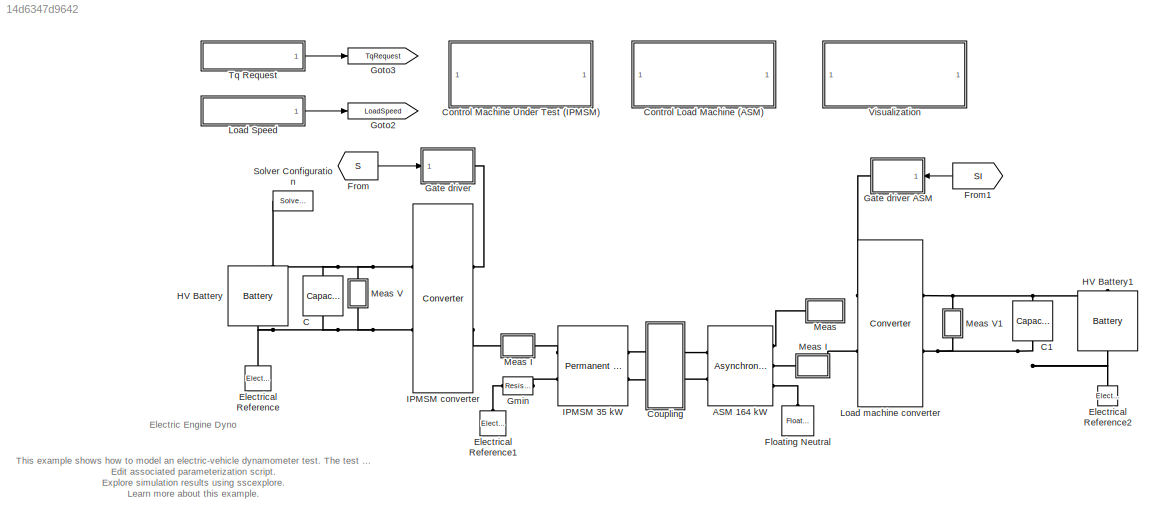
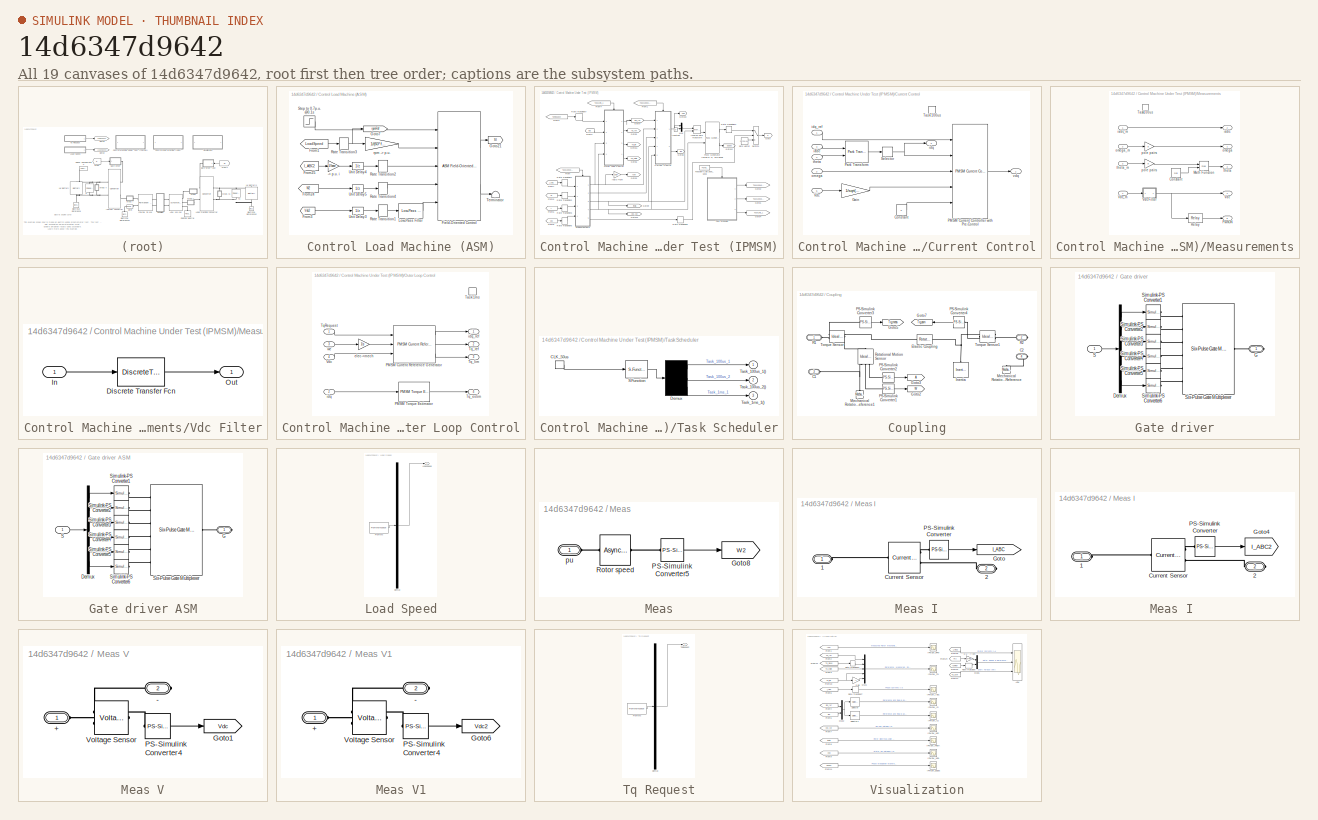
[diagram: thumbnail index - all 19 canvases of the model, root first then tree order]
MODEL slx_14d6347d9642
KIND model
CONFIG AbsTol = auto
CONFIG EnableMultiTasking = on
CONFIG FixedStep = Ts
CONFIG MaxStep = auto
CONFIG MinStep = auto
CONFIG PreLoadFcn = pe_electric_engine_dyno_data;
CONFIG RelTol = 1e-3
CONFIG SampleTimeConstraint = Unconstrained
CONFIG Solver = FixedStepDiscrete
CONFIG SolverName = FixedStepDiscrete
CONFIG StartTime = 0.0
CONFIG StopTime = 0.8
BLOCK [Reference] ASM 164 kW  REF=pe_lib/Machines/Asynchronous
Machine
(Squirrel Cage)/Asynchronous Machine
Squirrel Cage
(fundamental, SI)
  Ports = [0, 0, 0, 0, 0, 2, 3]
  SourceBlock = pe_lib/Machines/Asynchronous\nMachine\n(Squirrel Cage)/Asynchronous Machine\nSquirrel Cage\n(fundamental, SI)
  SourceProductBaseCode = PS
  SourceProductName = Simscape Power Systems
  SourceType = Asynchronous Machine\nSquirrel Cage\n(fundamental, SI)
BLOCK [Reference] C  REF=fl_lib/Electrical/Electrical Elements/Capacitor
  Ports = [0, 0, 0, 0, 0, 1, 1]
  SourceBlock = fl_lib/Electrical/Electrical Elements/Capacitor
  SourceProductName = Foundation Library
  SourceType = Capacitor
BLOCK [Reference] C1  REF=fl_lib/Electrical/Electrical Elements/Capacitor
  Ports = [0, 0, 0, 0, 0, 1, 1]
  SourceBlock = fl_lib/Electrical/Electrical Elements/Capacitor
  SourceProductName = Foundation Library
  SourceType = Capacitor
BLOCK [SubSystem] Control Load Machine (ASM)
  Ports = []
  RequestExecContextInheritance = off
  Variant = off
BLOCK [Gain] Control Load Machine (ASM)/-> p.u. i
  Gain = 1/Ibase
  OutDataTypeStr = Inherit: Inherit via internal rule
  ParamDataTypeStr = Inherit: Inherit via internal rule
  SaturateOnIntegerOverflow = off
BLOCK [Reference] Control Load Machine (ASM)/Field-Oriented Control  REF=peAsmFieldOrientedControl/ASM Field-Oriented Control
  Ports = [5, 2]
  SourceBlock = peAsmFieldOrientedControl/ASM Field-Oriented Control
  SourceType = ASM Field-Oriented Control
BLOCK [From] Control Load Machine (ASM)/From1
  GotoTag = LoadSpeed
  TagVisibility = global
BLOCK [From] Control Load Machine (ASM)/From24
  GotoTag = W2
  TagVisibility = global
BLOCK [From] Control Load Machine (ASM)/From25
  GotoTag = I_ABC2
  TagVisibility = global
BLOCK [From] Control Load Machine (ASM)/From3
  GotoTag = Vdc2
  TagVisibility = global
BLOCK [Goto] Control Load Machine (ASM)/Goto21
  GotoTag = SI
  TagVisibility = global
BLOCK [Goto] Control Load Machine (ASM)/Goto7
  GotoTag = rpmRef
  TagVisibility = global
BLOCK [Reference] Control Load Machine (ASM)/Low-Pass Filter  REF=peGeneralControl/Low-Pass Filter
(Discrete or Continuous)
  Ports = [1, 1]
  SourceBlock = peGeneralControl/Low-Pass Filter\n(Discrete or Continuous)
  SourceType = Low-Pass Filter (Discrete or Continuous)
BLOCK [RateTransition] Control Load Machine (ASM)/Rate Transition1
  OutPortSampleTime = Tsc
BLOCK [RateTransition] Control Load Machine (ASM)/Rate Transition2
  OutPortSampleTime = Tsc
BLOCK [RateTransition] Control Load Machine (ASM)/Rate Transition3
  OutPortSampleTime = Tsc
BLOCK [RateTransition] Control Load Machine (ASM)/Rate Transition4
  OutPortSampleTime = Tsc
BLOCK [Step] Control Load Machine (ASM)/Step to 0.7p.u. @0.1s
  After = 0.7*1/Lm
  SampleTime = Tsc
  Time = 0.1
BLOCK [Terminator] Control Load Machine (ASM)/Terminator
BLOCK [UnitDelay] Control Load Machine (ASM)/Unit Delay3
  InputProcessing = Elements as channels (sample based)
  SampleTime = Ts
BLOCK [UnitDelay] Control Load Machine (ASM)/Unit Delay4
  InputProcessing = Elements as channels (sample based)
  SampleTime = Ts
BLOCK [UnitDelay] Control Load Machine (ASM)/Unit Delay5
  InputProcessing = Elements as channels (sample based)
  SampleTime = Ts
BLOCK [Gain] Control Load Machine (ASM)/rpm -> p.u.
  Gain = 1/(60*fn/p2)
  OutDataTypeStr = Inherit: Inherit via internal rule
  ParamDataTypeStr = Inherit: Inherit via internal rule
  SaturateOnIntegerOverflow = off
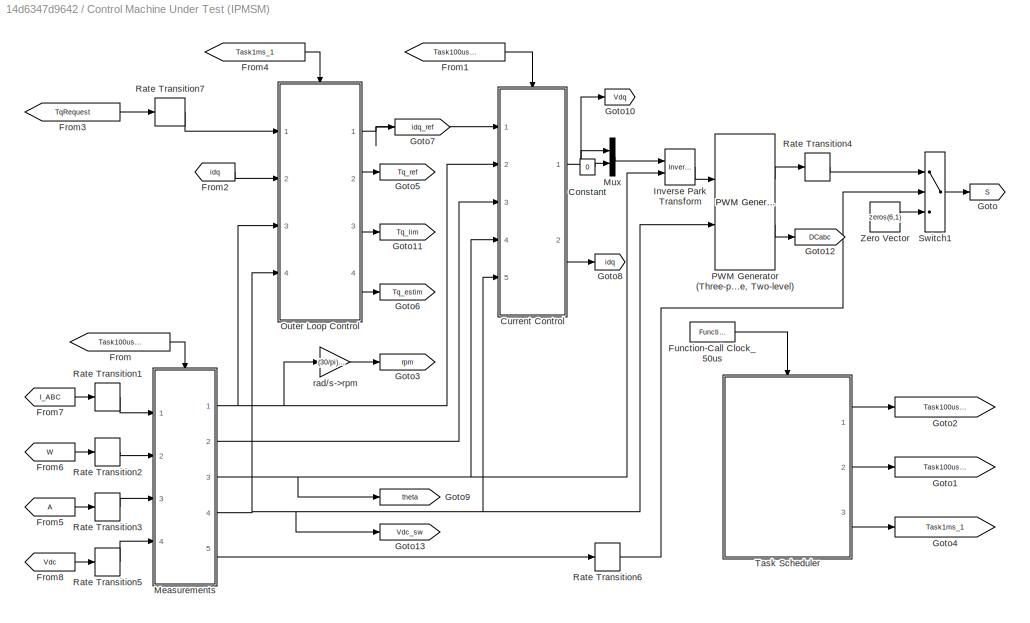
BLOCK [SubSystem] Control Machine Under Test (IPMSM)
  Ports = []
  RequestExecContextInheritance = off
  Variant = off
BLOCK [Constant] Control Machine Under Test (IPMSM)/Constant
  SampleTime = -1
  Value = 0
BLOCK [SubSystem] Control Machine Under Test (IPMSM)/Current Control
  Ports = [5, 2, 0, 1]
  RequestExecContextInheritance = off
  Variant = off
BLOCK [Constant] Control Machine Under Test (IPMSM)/Current Control/Constant
  SampleTime = -1
  Value = 0
BLOCK [Gain] Control Machine Under Test (IPMSM)/Current Control/Gain
  Gain = 1/sqrt(3)
  OutDataTypeStr = Inherit: Inherit via internal rule
  ParamDataTypeStr = Inherit: Inherit via internal rule
  SaturateOnIntegerOverflow = off
BLOCK [Reference] Control Machine Under Test (IPMSM)/Current Control/PMSM Current Controller with Pre-Control  REF=pePmsmCurrentController/PMSM Current Controller
with Pre-Control
  Ports = [5, 1]
  SourceBlock = pePmsmCurrentController/PMSM Current Controller\nwith Pre-Control
  SourceType = PMSM Current Controller with Pre-Control
BLOCK [Reference] Control Machine Under Test (IPMSM)/Current Control/Park Transform  REF=peTransforms/Park Transform
  Ports = [2, 1]
  SourceBlock = peTransforms/Park Transform
  SourceType = Park Transform
BLOCK [Selector] Control Machine Under Test (IPMSM)/Current Control/Selector
  IndexOptions = Index vector (dialog)
  Indices = [1 2]
  InputPortWidth = 3
  OutputSizes = 1
  Ports = [1, 1]
BLOCK [TriggerPort] Control Machine Under Test (IPMSM)/Current Control/Task100us
  PortDimensions = 1
  Ports = []
  StatesWhenEnabling = held
  TriggerType = function-call
  VariantControl = Variant
BLOCK [Inport] Control Machine Under Test (IPMSM)/Current Control/Vdc
  IconDisplay = Port number
  Port = 5
BLOCK [Inport] Control Machine Under Test (IPMSM)/Current Control/iabc
  IconDisplay = Port number
  Port = 3
BLOCK [Outport] Control Machine Under Test (IPMSM)/Current Control/idq
  IconDisplay = Port number
  Port = 2
BLOCK [Inport] Control Machine Under Test (IPMSM)/Current Control/idq_ref
  IconDisplay = Port number
BLOCK [Inport] Control Machine Under Test (IPMSM)/Current Control/omega
  IconDisplay = Port number
  Port = 2
BLOCK [Inport] Control Machine Under Test (IPMSM)/Current Control/theta
  IconDisplay = Port number
  Port = 4
BLOCK [Outport] Control Machine Under Test (IPMSM)/Current Control/vdq
  IconDisplay = Port number
BLOCK [From] Control Machine Under Test (IPMSM)/From
  GotoTag = Task100us_1
BLOCK [From] Control Machine Under Test (IPMSM)/From1
  GotoTag = Task100us_2
BLOCK [From] Control Machine Under Test (IPMSM)/From2
  GotoTag = idq
  TagVisibility = global
BLOCK [From] Control Machine Under Test (IPMSM)/From3
  GotoTag = TqRequest
  TagVisibility = global
BLOCK [From] Control Machine Under Test (IPMSM)/From4
  GotoTag = Task1ms_1
BLOCK [From] Control Machine Under Test (IPMSM)/From5
  TagVisibility = global
BLOCK [From] Control Machine Under Test (IPMSM)/From6
  GotoTag = W
  TagVisibility = global
BLOCK [From] Control Machine Under Test (IPMSM)/From7
  GotoTag = I_ABC
  TagVisibility = global
BLOCK [From] Control Machine Under Test (IPMSM)/From8
  GotoTag = Vdc
  TagVisibility = global
BLOCK [Reference] Control Machine Under Test (IPMSM)/Function-Call Clock_50us  REF=simulink/Ports &
Subsystems/Function-Call
Generator
  Ports = [0, 1]
  SourceBlock = simulink/Ports &\nSubsystems/Function-Call\nGenerator
  SourceProductBaseCode = SL
  SourceProductName = Simulink
  SourceType = Function-Call Generator
BLOCK [Goto] Control Machine Under Test (IPMSM)/Goto
  GotoTag = S
  TagVisibility = global
BLOCK [Goto] Control Machine Under Test (IPMSM)/Goto1
  GotoTag = Task100us_2
BLOCK [Goto] Control Machine Under Test (IPMSM)/Goto10
  GotoTag = Vdq
  TagVisibility = global
BLOCK [Goto] Control Machine Under Test (IPMSM)/Goto11
  GotoTag = Tq_lim
  TagVisibility = global
BLOCK [Goto] Control Machine Under Test (IPMSM)/Goto12
  GotoTag = DCabc
  TagVisibility = global
BLOCK [Goto] Control Machine Under Test (IPMSM)/Goto13
  GotoTag = Vdc_sw
  TagVisibility = global
BLOCK [Goto] Control Machine Under Test (IPMSM)/Goto2
  GotoTag = Task100us_1
BLOCK [Goto] Control Machine Under Test (IPMSM)/Goto3
  GotoTag = rpm
  TagVisibility = global
BLOCK [Goto] Control Machine Under Test (IPMSM)/Goto4
  GotoTag = Task1ms_1
BLOCK [Goto] Control Machine Under Test (IPMSM)/Goto5
  GotoTag = Tq_ref
  TagVisibility = global
BLOCK [Goto] Control Machine Under Test (IPMSM)/Goto6
  GotoTag = Tq_estim
  TagVisibility = global
BLOCK [Goto] Control Machine Under Test (IPMSM)/Goto7
  GotoTag = idq_ref
  TagVisibility = global
BLOCK [Goto] Control Machine Under Test (IPMSM)/Goto8
  GotoTag = idq
  TagVisibility = global
BLOCK [Goto] Control Machine Under Test (IPMSM)/Goto9
  GotoTag = theta
  TagVisibility = global
BLOCK [Reference] Control Machine Under Test (IPMSM)/Inverse Park Transform  REF=peTransforms/Inverse
Park Transform
  Ports = [2, 1]
  SourceBlock = peTransforms/Inverse\nPark Transform
  SourceType = Inverse Park Transform
BLOCK [SubSystem] Control Machine Under Test (IPMSM)/Measurements
  Ports = [4, 5, 0, 1]
  RequestExecContextInheritance = off
  Variant = off
BLOCK [Constant] Control Machine Under Test (IPMSM)/Measurements/Constant
  SampleTime = -1
  Value = 2*pi
BLOCK [Math] Control Machine Under Test (IPMSM)/Measurements/Math Function
  Operator = mod
  Ports = [2, 1]
BLOCK [Outport] Control Machine Under Test (IPMSM)/Measurements/PwmON
  IconDisplay = Port number
  Port = 5
BLOCK [Relay] Control Machine Under Test (IPMSM)/Measurements/Relay
  InputProcessing = Elements as channels (sample based)
  OffSwitchValue = 0.5*VDC_VECT(1)
  OnSwitchValue = VDC_VECT(1)
BLOCK [TriggerPort] Control Machine Under Test (IPMSM)/Measurements/Task100us
  PortDimensions = 1
  Ports = []
  StatesWhenEnabling = held
  TriggerType = function-call
  VariantControl = Variant
BLOCK [Outport] Control Machine Under Test (IPMSM)/Measurements/Vdc
  IconDisplay = Port number
  Port = 4
BLOCK [SubSystem] Control Machine Under Test (IPMSM)/Measurements/Vdc Filter
  Ports = [1, 1]
  RequestExecContextInheritance = off
  Variant = off
BLOCK [DiscreteTransferFcn] Control Machine Under Test (IPMSM)/Measurements/Vdc Filter/Discrete Transfer Fcn
  Denominator = den
  InputPortMap = u0
  Numerator = num
  Ports = [1, 1]
BLOCK [Inport] Control Machine Under Test (IPMSM)/Measurements/Vdc Filter/In
  IconDisplay = Port number
BLOCK [Outport] Control Machine Under Test (IPMSM)/Measurements/Vdc Filter/Out
  IconDisplay = Port number
BLOCK [Inport] Control Machine Under Test (IPMSM)/Measurements/Vdc_m
  IconDisplay = Port number
  Port = 4
BLOCK [Outport] Control Machine Under Test (IPMSM)/Measurements/iabc
  IconDisplay = Port number
  Port = 2
BLOCK [Inport] Control Machine Under Test (IPMSM)/Measurements/iabc_m
  IconDisplay = Port number
BLOCK [Outport] Control Machine Under Test (IPMSM)/Measurements/omega
  IconDisplay = Port number
BLOCK [Inport] Control Machine Under Test (IPMSM)/Measurements/omega_m
  IconDisplay = Port number
  Port = 2
BLOCK [Gain] Control Machine Under Test (IPMSM)/Measurements/pole pairs
  Gain = p
  OutDataTypeStr = Inherit: Inherit via internal rule
  ParamDataTypeStr = Inherit: Inherit via internal rule
  SaturateOnIntegerOverflow = off
BLOCK [Gain] Control Machine Under Test (IPMSM)/Measurements/pole pairs 
  Gain = p
  OutDataTypeStr = Inherit: Inherit via internal rule
  ParamDataTypeStr = Inherit: Inherit via internal rule
  SaturateOnIntegerOverflow = off
BLOCK [Outport] Control Machine Under Test (IPMSM)/Measurements/theta
  IconDisplay = Port number
  Port = 3
BLOCK [Inport] Control Machine Under Test (IPMSM)/Measurements/theta_m
  IconDisplay = Port number
  Port = 3
BLOCK [Mux] Control Machine Under Test (IPMSM)/Mux
  DisplayOption = bar
  Inputs = 2
  Ports = [2, 1]
BLOCK [SubSystem] Control Machine Under Test (IPMSM)/Outer Loop Control
  Ports = [4, 4, 0, 1]
  RequestExecContextInheritance = off
  Variant = off
BLOCK [Reference] Control Machine Under Test (IPMSM)/Outer Loop Control/PMSM Current Reference Generator  REF=pePmsmCurrentReferenceGen/PMSM Current Reference
Generator
  Ports = [3, 3]
  SourceBlock = pePmsmCurrentReferenceGen/PMSM Current Reference\nGenerator
  SourceType = PMSM Current Reference Generator
BLOCK [Reference] Control Machine Under Test (IPMSM)/Outer Loop Control/PMSM Torque Estimator  REF=pePmsmTorqueEstimator/PMSM Torque
Estimator
  Ports = [1, 1]
  SourceBlock = pePmsmTorqueEstimator/PMSM Torque\nEstimator
  SourceType = PMSM Torque Estimator
BLOCK [TriggerPort] Control Machine Under Test (IPMSM)/Outer Loop Control/Task1ms
  PortDimensions = 1
  Ports = []
  StatesWhenEnabling = held
  TriggerType = function-call
  VariantControl = Variant
BLOCK [Inport] Control Machine Under Test (IPMSM)/Outer Loop Control/TqRequest
  IconDisplay = Port number
BLOCK [Outport] Control Machine Under Test (IPMSM)/Outer Loop Control/Tq_estim
  IconDisplay = Port number
  Port = 4
BLOCK [Outport] Control Machine Under Test (IPMSM)/Outer Loop Control/Tq_lim
  IconDisplay = Port number
  Port = 3
BLOCK [Outport] Control Machine Under Test (IPMSM)/Outer Loop Control/Tq_ref
  IconDisplay = Port number
  Port = 2
BLOCK [Inport] Control Machine Under Test (IPMSM)/Outer Loop Control/Vdc
  IconDisplay = Port number
  Port = 4
BLOCK [Gain] Control Machine Under Test (IPMSM)/Outer Loop Control/elec->mech
  Gain = 1/p
  OutDataTypeStr = Inherit: Inherit via internal rule
  ParamDataTypeStr = Inherit: Inherit via internal rule
  SaturateOnIntegerOverflow = off
BLOCK [Inport] Control Machine Under Test (IPMSM)/Outer Loop Control/idq
  IconDisplay = Port number
  Port = 2
BLOCK [Outport] Control Machine Under Test (IPMSM)/Outer Loop Control/idq_ref
  IconDisplay = Port number
BLOCK [Inport] Control Machine Under Test (IPMSM)/Outer Loop Control/we
  IconDisplay = Port number
  Port = 3
BLOCK [Reference] Control Machine Under Test (IPMSM)/PWM Generator (Three-phase, Two-level)  REF=pePwmGeneratorTwoLevel/PWM Generator
(Three-phase, Two-level)
  Ports = [2, 2]
  SourceBlock = pePwmGeneratorTwoLevel/PWM Generator\n(Three-phase, Two-level)
  SourceType = PWM Generator (three-phase, two-level)
BLOCK [RateTransition] Control Machine Under Test (IPMSM)/Rate Transition1
BLOCK [RateTransition] Control Machine Under Test (IPMSM)/Rate Transition2
BLOCK [RateTransition] Control Machine Under Test (IPMSM)/Rate Transition3
BLOCK [RateTransition] Control Machine Under Test (IPMSM)/Rate Transition4
BLOCK [RateTransition] Control Machine Under Test (IPMSM)/Rate Transition5
BLOCK [RateTransition] Control Machine Under Test (IPMSM)/Rate Transition6
BLOCK [RateTransition] Control Machine Under Test (IPMSM)/Rate Transition7
BLOCK [Switch] Control Machine Under Test (IPMSM)/Switch1
  Criteria = u2 > Threshold
  InputSameDT = off
  SaturateOnIntegerOverflow = off
BLOCK [SubSystem] Control Machine Under Test (IPMSM)/Task Scheduler
  ErrorFcn = Stateflow.Translate.translate
  PermitHierarchicalResolution = ExplicitOnly
  Ports = [0, 3, 0, 1]
  RequestExecContextInheritance = off
  SFBlockType = Chart
  TreatAsAtomicUnit = on
  Variant = off
BLOCK [Demux] Control Machine Under Test (IPMSM)/Task Scheduler/ Demux 
  Outputs = 3
  Ports = [1, 3]
BLOCK [S-Function] Control Machine Under Test (IPMSM)/Task Scheduler/ SFunction 
  EnableBusSupport = on
  FunctionName = sf_sfun
  PortCounts = [1 1]
  Ports = [1, 1]
  SFcnIsStateOwnerBlock = off
  SFunctionDeploymentMode = off
  Tag = Stateflow S-Function pe_electric_engine_dyno 1
BLOCK [TriggerPort] Control Machine Under Test (IPMSM)/Task Scheduler/CLK_50us
  Ports = [0, 1]
  ShowOutputPort = on
  TriggerType = function-call
  VariantControl = Variant
BLOCK [Outport] Control Machine Under Test (IPMSM)/Task Scheduler/Task_100us_1()
  IconDisplay = Port number
BLOCK [Outport] Control Machine Under Test (IPMSM)/Task Scheduler/Task_100us_2()
  IconDisplay = Port number
  Port = 2
BLOCK [Outport] Control Machine Under Test (IPMSM)/Task Scheduler/Task_1ms_1()
  IconDisplay = Port number
  Port = 3
BLOCK [Constant] Control Machine Under Test (IPMSM)/Zero Vector
  SampleTime = -1
  Value = zeros(6,1)
BLOCK [Gain] Control Machine Under Test (IPMSM)/rad//s->rpm
  Gain = (30/pi)/p
  OutDataTypeStr = Inherit: Inherit via internal rule
  ParamDataTypeStr = Inherit: Inherit via internal rule
  SaturateOnIntegerOverflow = off
BLOCK [SubSystem] Coupling
  Ports = [0, 0, 0, 0, 0, 2, 2]
  RequestExecContextInheritance = off
  Variant = off
BLOCK [PMIOPort] Coupling/C1
  Port = 3
  Side = Left
BLOCK [PMIOPort] Coupling/C2
  Port = 4
  Side = Right
BLOCK [Reference] Coupling/Elastic Coupling  REF=fl_lib/Mechanical/Rotational Elements/Rotational Damper
  Ports = [0, 0, 0, 0, 0, 1, 1]
  SourceBlock = fl_lib/Mechanical/Rotational Elements/Rotational Damper
  SourceProductBaseCode = SS
  SourceProductName = Simscape
  SourceType = Rotational Damper
BLOCK [Goto] Coupling/Goto2
  GotoTag = W
  TagVisibility = global
BLOCK [Goto] Coupling/Goto3
  TagVisibility = global
BLOCK [Goto] Coupling/Goto5
  GotoTag = Tq_meas
  TagVisibility = global
BLOCK [Goto] Coupling/Goto7
  GotoTag = Tq_asm
  TagVisibility = global
BLOCK [Reference] Coupling/Inertia  REF=fl_lib/Mechanical/Rotational Elements/Inertia
  Ports = [0, 0, 0, 0, 0, 1]
  SourceBlock = fl_lib/Mechanical/Rotational Elements/Inertia
  SourceProductName = Foundation Library
  SourceType = Inertia
BLOCK [Reference] Coupling/Mechanical Rotational Reference  REF=fl_lib/Mechanical/Rotational Elements/Mechanical
Rotational Reference
  Ports = [0, 0, 0, 0, 0, 1]
  SourceBlock = fl_lib/Mechanical/Rotational Elements/Mechanical\nRotational Reference
  SourceProductName = Foundation Library
  SourceType = Mechanical\nRotational Reference
BLOCK [Reference] Coupling/Mechanical Rotational Reference1  REF=fl_lib/Mechanical/Rotational Elements/Mechanical
Rotational Reference
  Ports = [0, 0, 0, 0, 0, 1]
  SourceBlock = fl_lib/Mechanical/Rotational Elements/Mechanical\nRotational Reference
  SourceProductName = Foundation Library
  SourceType = Mechanical\nRotational Reference
BLOCK [Reference] Coupling/PS-Simulink Converter1  REF=nesl_utility/PS-Simulink
Converter
  Ports = [0, 1, 0, 0, 0, 1]
  SourceBlock = nesl_utility/PS-Simulink\nConverter
  SourceProductBaseCode = SS
  SourceProductName = Simscape
  SourceType = PS-Simulink\nConverter
BLOCK [Reference] Coupling/PS-Simulink Converter2  REF=nesl_utility/PS-Simulink
Converter
  Ports = [0, 1, 0, 0, 0, 1]
  SourceBlock = nesl_utility/PS-Simulink\nConverter
  SourceProductBaseCode = SS
  SourceProductName = Simscape
  SourceType = PS-Simulink\nConverter
BLOCK [Reference] Coupling/PS-Simulink Converter3  REF=nesl_utility/PS-Simulink
Converter
  Ports = [0, 1, 0, 0, 0, 1]
  SourceBlock = nesl_utility/PS-Simulink\nConverter
  SourceProductBaseCode = SS
  SourceProductName = Simscape
  SourceType = PS-Simulink\nConverter
BLOCK [Reference] Coupling/PS-Simulink Converter4  REF=nesl_utility/PS-Simulink
Converter
  Ports = [0, 1, 0, 0, 0, 1]
  SourceBlock = nesl_utility/PS-Simulink\nConverter
  SourceProductBaseCode = SS
  SourceProductName = Simscape
  SourceType = PS-Simulink\nConverter
BLOCK [PMIOPort] Coupling/R1
  Port = 1
  Side = Left
BLOCK [PMIOPort] Coupling/R2
  Port = 2
  Side = Right
BLOCK [Reference] Coupling/Rotational Motion Sensor  REF=fl_lib/Mechanical/Mechanical Sensors/Ideal Rotational
Motion Sensor
  Ports = [0, 0, 0, 0, 0, 1, 3]
  SourceBlock = fl_lib/Mechanical/Mechanical Sensors/Ideal Rotational\nMotion Sensor
  SourceProductName = Foundation Library
  SourceType = Ideal Rotational\nMotion Sensor
BLOCK [Reference] Coupling/Torque Sensor  REF=fl_lib/Mechanical/Mechanical Sensors/Ideal Torque Sensor
  Ports = [0, 0, 0, 0, 0, 1, 2]
  SourceBlock = fl_lib/Mechanical/Mechanical Sensors/Ideal Torque Sensor
  SourceProductName = Foundation Library
  SourceType = Ideal Torque Sensor
BLOCK [Reference] Coupling/Torque Sensor1  REF=fl_lib/Mechanical/Mechanical Sensors/Ideal Torque Sensor
  Ports = [0, 0, 0, 0, 0, 1, 2]
  SourceBlock = fl_lib/Mechanical/Mechanical Sensors/Ideal Torque Sensor
  SourceProductName = Foundation Library
  SourceType = Ideal Torque Sensor
BLOCK [Reference] Electrical Reference  REF=fl_lib/Electrical/Electrical Elements/Electrical Reference
  Ports = [0, 0, 0, 0, 0, 1]
  SourceBlock = fl_lib/Electrical/Electrical Elements/Electrical Reference
  SourceProductName = Foundation Library
  SourceType = Electrical Reference
BLOCK [Reference] Electrical Reference1  REF=fl_lib/Electrical/Electrical Elements/Electrical Reference
  Ports = [0, 0, 0, 0, 0, 1]
  SourceBlock = fl_lib/Electrical/Electrical Elements/Electrical Reference
  SourceProductName = Foundation Library
  SourceType = Electrical Reference
BLOCK [Reference] Electrical Reference2  REF=fl_lib/Electrical/Electrical Elements/Electrical Reference
  Ports = [0, 0, 0, 0, 0, 1]
  SourceBlock = fl_lib/Electrical/Electrical Elements/Electrical Reference
  SourceProductName = Foundation Library
  SourceType = Electrical Reference
BLOCK [Reference] Floating Neutral  REF=pe_lib/Connections/Floating Neutral
  Ports = [0, 0, 0, 0, 0, 1]
  SourceBlock = pe_lib/Connections/Floating Neutral
  SourceProductBaseCode = PS
  SourceProductName = Simscape Power Systems
  SourceType = Floating Neutral
BLOCK [From] From
  GotoTag = S
  TagVisibility = global
BLOCK [From] From1
  GotoTag = SI
  TagVisibility = global
BLOCK [SubSystem] Gate driver
  Ports = [1, 0, 0, 0, 0, 0, 1]
  RequestExecContextInheritance = off
  Variant = off
BLOCK [SubSystem] Gate driver ASM
  Ports = [1, 0, 0, 0, 0, 0, 1]
  RequestExecContextInheritance = off
  Variant = off
BLOCK [Demux] Gate driver ASM/Demux
  DisplayOption = bar
  Outputs = 6
  Ports = [1, 6]
BLOCK [PMIOPort] Gate driver ASM/G
  Port = 1
  Side = Right
BLOCK [Inport] Gate driver ASM/S
  IconDisplay = Port number
BLOCK [Reference] Gate driver ASM/Simulink-PS Converter1  REF=nesl_utility/Simulink-PS
Converter
  Ports = [1, 0, 0, 0, 0, 0, 1]
  SourceBlock = nesl_utility/Simulink-PS\nConverter
  SourceProductBaseCode = SS
  SourceProductName = Simscape
  SourceType = Simulink-PS\nConverter
BLOCK [Reference] Gate driver ASM/Simulink-PS Converter2  REF=nesl_utility/Simulink-PS
Converter
  Ports = [1, 0, 0, 0, 0, 0, 1]
  SourceBlock = nesl_utility/Simulink-PS\nConverter
  SourceProductBaseCode = SS
  SourceProductName = Simscape
  SourceType = Simulink-PS\nConverter
BLOCK [Reference] Gate driver ASM/Simulink-PS Converter3  REF=nesl_utility/Simulink-PS
Converter
  Ports = [1, 0, 0, 0, 0, 0, 1]
  SourceBlock = nesl_utility/Simulink-PS\nConverter
  SourceProductBaseCode = SS
  SourceProductName = Simscape
  SourceType = Simulink-PS\nConverter
BLOCK [Reference] Gate driver ASM/Simulink-PS Converter4  REF=nesl_utility/Simulink-PS
Converter
  Ports = [1, 0, 0, 0, 0, 0, 1]
  SourceBlock = nesl_utility/Simulink-PS\nConverter
  SourceProductBaseCode = SS
  SourceProductName = Simscape
  SourceType = Simulink-PS\nConverter
BLOCK [Reference] Gate driver ASM/Simulink-PS Converter5  REF=nesl_utility/Simulink-PS
Converter
  Ports = [1, 0, 0, 0, 0, 0, 1]
  SourceBlock = nesl_utility/Simulink-PS\nConverter
  SourceProductBaseCode = SS
  SourceProductName = Simscape
  SourceType = Simulink-PS\nConverter
BLOCK [Reference] Gate driver ASM/Simulink-PS Converter6  REF=nesl_utility/Simulink-PS
Converter
  Ports = [1, 0, 0, 0, 0, 0, 1]
  SourceBlock = nesl_utility/Simulink-PS\nConverter
  SourceProductBaseCode = SS
  SourceProductName = Simscape
  SourceType = Simulink-PS\nConverter
BLOCK [Reference] Gate driver ASM/Six-Pulse Gate Multiplexer  REF=pe_lib/Semiconductors/Six-Pulse Gate
Multiplexer
  Ports = [0, 0, 0, 0, 0, 6, 1]
  SourceBlock = pe_lib/Semiconductors/Six-Pulse Gate\nMultiplexer
  SourceProductBaseCode = PS
  SourceProductName = Simscape Power Systems
  SourceType = Six-Pulse Gate\nMultiplexer
BLOCK [Demux] Gate driver/Demux
  DisplayOption = bar
  Outputs = 6
  Ports = [1, 6]
BLOCK [PMIOPort] Gate driver/G
  Port = 1
  Side = Right
BLOCK [Inport] Gate driver/S
  IconDisplay = Port number
BLOCK [Reference] Gate driver/Simulink-PS Converter1  REF=nesl_utility/Simulink-PS
Converter
  Ports = [1, 0, 0, 0, 0, 0, 1]
  SourceBlock = nesl_utility/Simulink-PS\nConverter
  SourceProductBaseCode = SS
  SourceProductName = Simscape
  SourceType = Simulink-PS\nConverter
BLOCK [Reference] Gate driver/Simulink-PS Converter2  REF=nesl_utility/Simulink-PS
Converter
  Ports = [1, 0, 0, 0, 0, 0, 1]
  SourceBlock = nesl_utility/Simulink-PS\nConverter
  SourceProductBaseCode = SS
  SourceProductName = Simscape
  SourceType = Simulink-PS\nConverter
BLOCK [Reference] Gate driver/Simulink-PS Converter3  REF=nesl_utility/Simulink-PS
Converter
  Ports = [1, 0, 0, 0, 0, 0, 1]
  SourceBlock = nesl_utility/Simulink-PS\nConverter
  SourceProductBaseCode = SS
  SourceProductName = Simscape
  SourceType = Simulink-PS\nConverter
BLOCK [Reference] Gate driver/Simulink-PS Converter4  REF=nesl_utility/Simulink-PS
Converter
  Ports = [1, 0, 0, 0, 0, 0, 1]
  SourceBlock = nesl_utility/Simulink-PS\nConverter
  SourceProductBaseCode = SS
  SourceProductName = Simscape
  SourceType = Simulink-PS\nConverter
BLOCK [Reference] Gate driver/Simulink-PS Converter5  REF=nesl_utility/Simulink-PS
Converter
  Ports = [1, 0, 0, 0, 0, 0, 1]
  SourceBlock = nesl_utility/Simulink-PS\nConverter
  SourceProductBaseCode = SS
  SourceProductName = Simscape
  SourceType = Simulink-PS\nConverter
BLOCK [Reference] Gate driver/Simulink-PS Converter6  REF=nesl_utility/Simulink-PS
Converter
  Ports = [1, 0, 0, 0, 0, 0, 1]
  SourceBlock = nesl_utility/Simulink-PS\nConverter
  SourceProductBaseCode = SS
  SourceProductName = Simscape
  SourceType = Simulink-PS\nConverter
BLOCK [Reference] Gate driver/Six-Pulse Gate Multiplexer  REF=pe_lib/Semiconductors/Six-Pulse Gate
Multiplexer
  Ports = [0, 0, 0, 0, 0, 6, 1]
  SourceBlock = pe_lib/Semiconductors/Six-Pulse Gate\nMultiplexer
  SourceProductBaseCode = PS
  SourceProductName = Simscape Power Systems
  SourceType = Six-Pulse Gate\nMultiplexer
BLOCK [Reference] Gmin  REF=fl_lib/Electrical/Electrical Elements/Resistor
  Ports = [0, 0, 0, 0, 0, 1, 1]
  SourceBlock = fl_lib/Electrical/Electrical Elements/Resistor
  SourceProductName = Foundation Library
  SourceType = Resistor
BLOCK [Goto] Goto2
  GotoTag = LoadSpeed
  TagVisibility = global
BLOCK [Goto] Goto3
  GotoTag = TqRequest
  TagVisibility = global
BLOCK [Reference] HV Battery  REF=pe_lib/Sources/Battery
  Ports = [0, 0, 0, 0, 0, 1, 1]
  SourceBlock = pe_lib/Sources/Battery
  SourceProductBaseCode = PS
  SourceProductName = Simscape Power Systems
  SourceType = Battery
BLOCK [Reference] HV Battery1  REF=pe_lib/Sources/Battery
  Ports = [0, 0, 0, 0, 0, 1, 1]
  SourceBlock = pe_lib/Sources/Battery
  SourceProductBaseCode = PS
  SourceProductName = Simscape Power Systems
  SourceType = Battery
BLOCK [Reference] IPMSM 35 kW  REF=pe_lib/Machines/Permanent Magnet
Rotor/Permanent Magnet
Synchronous Motor
  Ports = [0, 0, 0, 0, 0, 2, 2]
  SourceBlock = pe_lib/Machines/Permanent Magnet\nRotor/Permanent Magnet\nSynchronous Motor
  SourceProductBaseCode = PS
  SourceProductName = Simscape Power Systems
  SourceType = Permanent Magnet\nSynchronous Motor
BLOCK [Reference] IPMSM converter  REF=pe_lib/Semiconductors/Converter
  Ports = [0, 0, 0, 0, 0, 2, 2]
  SourceBlock = pe_lib/Semiconductors/Converter
  SourceProductBaseCode = PS
  SourceProductName = Simscape Power Systems
  SourceType = Converter
BLOCK [SubSystem] Load Speed
  ClipboardFcn = sigbuilder_block('clipboard');
  CloseFcn = sigbuilder_block('close');
  ContinueFcn = sigbuilder_block('continue');
  CopyFcn = sigbuilder_block('copy');
  DeleteFcn = sigbuilder_block('delete');
  LoadFcn = sigbuilder_block('load');
  MaskHideContents = on
  ModelCloseFcn = sigbuilder_block('modelClose');
  NameChangeFcn = sigbuilder_block('namechange');
  OpenFcn = sigbuilder_block('open',[324 245.25 633.75 283.5 ]);
  PauseFcn = sigbuilder_block('pause');
  Ports = [0, 1]
  PreSaveFcn = sigbuilder_block('preSave');
  RequestExecContextInheritance = off
  StartFcn = sigbuilder_block('start');
  StopFcn = sigbuilder_block('stop');
  Tag = STV Subsys
  Variant = off
BLOCK [Demux] Load Speed/Demux
  Outputs = 1
  Ports = [1, 1]
  Tag = STV Demux
BLOCK [FromWorkspace] Load Speed/FromWs
  SampleTime = 0
  Tag = STV FromWs
  VariableName = tuvar
  ZeroCross = on
BLOCK [Outport] Load Speed/LoadSpeed
  IconDisplay = Port number
  Tag = STV Outport
BLOCK [Reference] Load machine converter  REF=pe_lib/Semiconductors/Converter
  Ports = [0, 0, 0, 0, 0, 2, 2]
  SourceBlock = pe_lib/Semiconductors/Converter
  SourceProductBaseCode = PS
  SourceProductName = Simscape Power Systems
  SourceType = Converter
BLOCK [SubSystem] Meas
  Ports = [0, 0, 0, 0, 0, 1]
  RequestExecContextInheritance = off
  Variant = off
BLOCK [SubSystem] Meas I
  Ports = [0, 0, 0, 0, 0, 1, 1]
  RequestExecContextInheritance = off
  Variant = off
BLOCK [SubSystem] Meas I 
  Ports = [0, 0, 0, 0, 0, 1, 1]
  RequestExecContextInheritance = off
  Variant = off
BLOCK [PMIOPort] Meas I /1
  Port = 1
  Side = Left
BLOCK [PMIOPort] Meas I /2
  Port = 2
  Side = Right
BLOCK [Reference] Meas I /Current Sensor  REF=pe_lib/Sensors/Current Sensor
  Ports = [0, 0, 0, 0, 0, 1, 2]
  SourceBlock = pe_lib/Sensors/Current Sensor
  SourceProductBaseCode = PS
  SourceProductName = Simscape Power Systems
  SourceType = Current Sensor
BLOCK [Goto] Meas I /Goto4
  GotoTag = I_ABC2
  TagVisibility = global
BLOCK [Reference] Meas I /PS-Simulink Converter  REF=nesl_utility/PS-Simulink
Converter
  Ports = [0, 1, 0, 0, 0, 1]
  SourceBlock = nesl_utility/PS-Simulink\nConverter
  SourceProductBaseCode = SS
  SourceProductName = Simscape
  SourceType = PS-Simulink\nConverter
BLOCK [PMIOPort] Meas I/1
  Port = 1
  Side = Left
BLOCK [PMIOPort] Meas I/2
  Port = 2
  Side = Right
BLOCK [Reference] Meas I/Current Sensor  REF=pe_lib/Sensors/Current Sensor
  Ports = [0, 0, 0, 0, 0, 1, 2]
  SourceBlock = pe_lib/Sensors/Current Sensor
  SourceProductBaseCode = PS
  SourceProductName = Simscape Power Systems
  SourceType = Current Sensor
BLOCK [Goto] Meas I/Goto
  GotoTag = I_ABC
  TagVisibility = global
BLOCK [Reference] Meas I/PS-Simulink Converter  REF=nesl_utility/PS-Simulink
Converter
  Ports = [0, 1, 0, 0, 0, 1]
  SourceBlock = nesl_utility/PS-Simulink\nConverter
  SourceProductBaseCode = SS
  SourceProductName = Simscape
  SourceType = PS-Simulink\nConverter
BLOCK [SubSystem] Meas V
  Ports = [0, 0, 0, 0, 0, 1, 1]
  RequestExecContextInheritance = off
  Variant = off
BLOCK [PMIOPort] Meas V/+
  Port = 1
  Side = Left
BLOCK [PMIOPort] Meas V/-
  Port = 2
  Side = Right
BLOCK [Goto] Meas V/Goto1
  GotoTag = Vdc
  TagVisibility = global
BLOCK [Reference] Meas V/PS-Simulink Converter4  REF=nesl_utility/PS-Simulink
Converter
  Ports = [0, 1, 0, 0, 0, 1]
  SourceBlock = nesl_utility/PS-Simulink\nConverter
  SourceProductBaseCode = SS
  SourceProductName = Simscape
  SourceType = PS-Simulink\nConverter
BLOCK [Reference] Meas V/Voltage Sensor  REF=fl_lib/Electrical/Electrical Sensors/Voltage Sensor
  Ports = [0, 0, 0, 0, 0, 1, 2]
  SourceBlock = fl_lib/Electrical/Electrical Sensors/Voltage Sensor
  SourceProductName = Foundation Library
  SourceType = Voltage Sensor
BLOCK [SubSystem] Meas V1
  Ports = [0, 0, 0, 0, 0, 1, 1]
  RequestExecContextInheritance = off
  Variant = off
BLOCK [PMIOPort] Meas V1/+
  Port = 1
  Side = Left
BLOCK [PMIOPort] Meas V1/-
  Port = 2
  Side = Right
BLOCK [Goto] Meas V1/Goto6
  GotoTag = Vdc2
  TagVisibility = global
BLOCK [Reference] Meas V1/PS-Simulink Converter4  REF=nesl_utility/PS-Simulink
Converter
  Ports = [0, 1, 0, 0, 0, 1]
  SourceBlock = nesl_utility/PS-Simulink\nConverter
  SourceProductBaseCode = SS
  SourceProductName = Simscape
  SourceType = PS-Simulink\nConverter
BLOCK [Reference] Meas V1/Voltage Sensor  REF=fl_lib/Electrical/Electrical Sensors/Voltage Sensor
  Ports = [0, 0, 0, 0, 0, 1, 2]
  SourceBlock = fl_lib/Electrical/Electrical Sensors/Voltage Sensor
  SourceProductName = Foundation Library
  SourceType = Voltage Sensor
BLOCK [Goto] Meas/Goto8
  GotoTag = W2
  TagVisibility = global
BLOCK [Reference] Meas/PS-Simulink Converter5  REF=nesl_utility/PS-Simulink
Converter
  Ports = [0, 1, 0, 0, 0, 1]
  SourceBlock = nesl_utility/PS-Simulink\nConverter
  SourceProductBaseCode = SS
  SourceProductName = Simscape
  SourceType = PS-Simulink\nConverter
BLOCK [Reference] Meas/Rotor speed  REF=pe_lib/Machines/Asynchronous Machine
Measurement
  Ports = [0, 0, 0, 0, 0, 1, 1]
  SourceBlock = pe_lib/Machines/Asynchronous Machine\nMeasurement
  SourceProductBaseCode = PS
  SourceProductName = Simscape Power Systems
  SourceType = Asynchronous Machine\nMeasurement
BLOCK [PMIOPort] Meas/pu
  Port = 1
  Side = Left
BLOCK [Reference] Solver Configuration  REF=nesl_utility/Solver
Configuration
  Ports = [0, 0, 0, 0, 0, 0, 1]
  SourceBlock = nesl_utility/Solver\nConfiguration
  SourceProductBaseCode = SS
  SourceProductName = Simscape
  SourceType = Solver\nConfiguration
BLOCK [SubSystem] Tq Request
  ClipboardFcn = sigbuilder_block('clipboard');
  CloseFcn = sigbuilder_block('close');
  ContinueFcn = sigbuilder_block('continue');
  CopyFcn = sigbuilder_block('copy');
  DeleteFcn = sigbuilder_block('delete');
  LoadFcn = sigbuilder_block('load');
  MaskHideContents = on
  ModelCloseFcn = sigbuilder_block('modelClose');
  NameChangeFcn = sigbuilder_block('namechange');
  OpenFcn = sigbuilder_block('open',[1556.25 287.25 486.75 260.25 ]);
  PauseFcn = sigbuilder_block('pause');
  Ports = [0, 1]
  PreSaveFcn = sigbuilder_block('preSave');
  RequestExecContextInheritance = off
  StartFcn = sigbuilder_block('start');
  StopFcn = sigbuilder_block('stop');
  Tag = STV Subsys
  Variant = off
BLOCK [Demux] Tq Request/Demux
  Outputs = 1
  Ports = [1, 1]
  Tag = STV Demux
BLOCK [FromWorkspace] Tq Request/FromWs
  SampleTime = 0
  Tag = STV FromWs
  VariableName = tuvar
  ZeroCross = on
BLOCK [Outport] Tq Request/TqRequest
  IconDisplay = Port number
  Tag = STV Outport
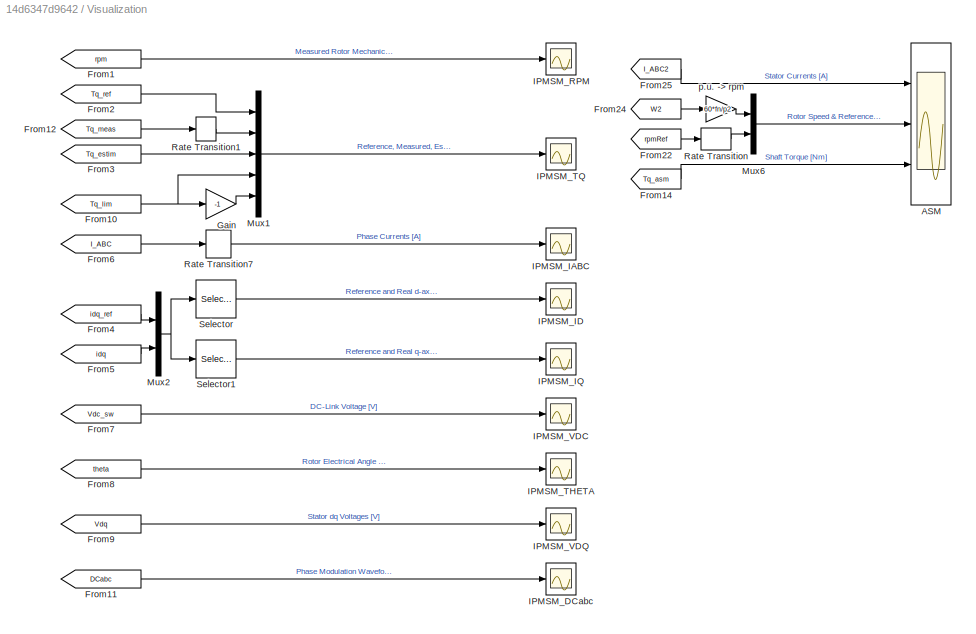
BLOCK [SubSystem] Visualization
  Ports = []
  RequestExecContextInheritance = off
  Variant = off
BLOCK [Scope] Visualization/ASM
  NumInputPorts = 3
  Ports = [3]
  ScopeSpecificationString = Simulink.scopes.TimeScopeBlockCfg('CurrentConfiguration', extmgr.ConfigurationSet(extmgr.Configuration('Core','General UI',true),extmgr.Configuration('Core','Source UI',true),extmgr.Configuration('Sources','WiredSimulink',true,'DataLoggingVariableName','ScopeData2'),extmgr.Configuration('Visuals','Time Domain',true,'SerializedDisplays',{struct('MinYLimReal','-633.25537','MaxYLimReal','629.00014','...<+2950ch>
BLOCK [From] Visualization/From1
  GotoTag = rpm
  TagVisibility = global
BLOCK [From] Visualization/From10
  GotoTag = Tq_lim
  TagVisibility = global
BLOCK [From] Visualization/From11
  GotoTag = DCabc
  TagVisibility = global
BLOCK [From] Visualization/From12
  GotoTag = Tq_meas
  TagVisibility = global
BLOCK [From] Visualization/From14
  GotoTag = Tq_asm
  TagVisibility = global
BLOCK [From] Visualization/From2
  GotoTag = Tq_ref
  TagVisibility = global
BLOCK [From] Visualization/From22
  GotoTag = rpmRef
  TagVisibility = global
BLOCK [From] Visualization/From24
  GotoTag = W2
  TagVisibility = global
BLOCK [From] Visualization/From25
  GotoTag = I_ABC2
  TagVisibility = global
BLOCK [From] Visualization/From3
  GotoTag = Tq_estim
  TagVisibility = global
BLOCK [From] Visualization/From4
  GotoTag = idq_ref
  TagVisibility = global
BLOCK [From] Visualization/From5
  GotoTag = idq
  TagVisibility = global
BLOCK [From] Visualization/From6
  GotoTag = I_ABC
  TagVisibility = global
BLOCK [From] Visualization/From7
  GotoTag = Vdc_sw
  TagVisibility = global
BLOCK [From] Visualization/From8
  GotoTag = theta
  TagVisibility = global
BLOCK [From] Visualization/From9
  GotoTag = Vdq
  TagVisibility = global
BLOCK [Gain] Visualization/Gain
  Gain = -1
  OutDataTypeStr = Inherit: Inherit via internal rule
  ParamDataTypeStr = Inherit: Inherit via internal rule
  SaturateOnIntegerOverflow = off
BLOCK [Scope] Visualization/IPMSM_DCabc
  NumInputPorts = 1
  Ports = [1]
  ScopeSpecificationString = Simulink.scopes.TimeScopeBlockCfg('CurrentConfiguration', extmgr.ConfigurationSet(extmgr.Configuration('Core','General UI',true),extmgr.Configuration('Core','Source UI',true),extmgr.Configuration('Sources','WiredSimulink',true,'DataLoggingVariableName','ScopeData1'),extmgr.Configuration('Visuals','Time Domain',true,'SerializedDisplays',{struct('MinYLimReal','-1.25','MaxYLimReal','1.25','YLabelReal...<+1505ch>
BLOCK [Scope] Visualization/IPMSM_IABC
  NumInputPorts = 1
  Ports = [1]
  ScopeSpecificationString = Simulink.scopes.TimeScopeBlockCfg('CurrentConfiguration', extmgr.ConfigurationSet(extmgr.Configuration('Core','General UI',true),extmgr.Configuration('Core','Source UI',true),extmgr.Configuration('Sources','WiredSimulink',true,'DataLoggingVariableName','ScopeData5'),extmgr.Configuration('Visuals','Time Domain',true,'SerializedDisplays',{struct('MinYLimReal','-453.06653','MaxYLimReal','461.08946','...<+1512ch>
BLOCK [Scope] Visualization/IPMSM_ID
  NumInputPorts = 1
  Ports = [1]
  ScopeSpecificationString = Simulink.scopes.TimeScopeBlockCfg('CurrentConfiguration', extmgr.ConfigurationSet(extmgr.Configuration('Core','General UI',true),extmgr.Configuration('Core','Source UI',true),extmgr.Configuration('Sources','WiredSimulink',true,'DataLoggingVariableName','ScopeData1','DataLoggingSaveFormat','Array','DataLoggingDecimation','1','DataLoggingDecimateData',true),extmgr.Configuration('Visuals','Time Domai...<+1597ch>
BLOCK [Scope] Visualization/IPMSM_IQ
  NumInputPorts = 1
  Ports = [1]
  ScopeSpecificationString = Simulink.scopes.TimeScopeBlockCfg('CurrentConfiguration', extmgr.ConfigurationSet(extmgr.Configuration('Core','General UI',true),extmgr.Configuration('Core','Source UI',true),extmgr.Configuration('Sources','WiredSimulink',true,'DataLoggingVariableName','ScopeData2','DataLoggingSaveFormat','Array','DataLoggingDecimation','1','DataLoggingDecimateData',true),extmgr.Configuration('Visuals','Time Domai...<+1599ch>
BLOCK [Scope] Visualization/IPMSM_RPM
  NumInputPorts = 1
  Ports = [1]
  ScopeSpecificationString = Simulink.scopes.TimeScopeBlockCfg('CurrentConfiguration', extmgr.ConfigurationSet(extmgr.Configuration('Core','General UI',true),extmgr.Configuration('Core','Source UI',true),extmgr.Configuration('Sources','WiredSimulink',true,'DataLoggingVariableName','ScopeData1'),extmgr.Configuration('Visuals','Time Domain',true,'SerializedDisplays',{struct('MinYLimReal','-320.22443','MaxYLimReal','2881.82451',...<+1515ch>
BLOCK [Scope] Visualization/IPMSM_THETA
  NumInputPorts = 1
  Ports = [1]
  ScopeSpecificationString = Simulink.scopes.TimeScopeBlockCfg('CurrentConfiguration', extmgr.ConfigurationSet(extmgr.Configuration('Core','General UI',true),extmgr.Configuration('Core','Source UI',true),extmgr.Configuration('Sources','WiredSimulink',true,'DataLoggingVariableName','ScopeData7'),extmgr.Configuration('Visuals','Time Domain',true,'SerializedDisplays',{struct('MinYLimReal','-0.7854','MaxYLimReal','7.06858','YLabe...<+1459ch>
BLOCK [Scope] Visualization/IPMSM_TQ
  NumInputPorts = 1
  Ports = [1]
  ScopeSpecificationString = Simulink.scopes.TimeScopeBlockCfg('CurrentConfiguration', extmgr.ConfigurationSet(extmgr.Configuration('Core','General UI',true),extmgr.Configuration('Core','Source UI',true),extmgr.Configuration('Sources','WiredSimulink',true,'DataLoggingVariableName','ScopeData2'),extmgr.Configuration('Visuals','Time Domain',true,'SerializedDisplays',{struct('MinYLimReal','-253.85556','MaxYLimReal','260.87033','...<+1593ch>
BLOCK [Scope] Visualization/IPMSM_VDC
  NumInputPorts = 1
  Ports = [1]
  ScopeSpecificationString = Simulink.scopes.TimeScopeBlockCfg('CurrentConfiguration', extmgr.ConfigurationSet(extmgr.Configuration('Core','General UI',true),extmgr.Configuration('Core','Source UI',true),extmgr.Configuration('Sources','WiredSimulink',true,'DataLoggingVariableName','ScopeData6'),extmgr.Configuration('Visuals','Time Domain',true,'SerializedDisplays',{struct('MinYLimReal','-40.26248','MaxYLimReal','362.39418','Y...<+1461ch>
BLOCK [Scope] Visualization/IPMSM_VDQ
  NumInputPorts = 1
  Ports = [1]
  ScopeSpecificationString = Simulink.scopes.TimeScopeBlockCfg('CurrentConfiguration', extmgr.ConfigurationSet(extmgr.Configuration('Core','General UI',true),extmgr.Configuration('Core','Source UI',true),extmgr.Configuration('Sources','WiredSimulink',true,'DataLoggingVariableName','ScopeData8'),extmgr.Configuration('Visuals','Time Domain',true,'SerializedDisplays',{struct('MinYLimReal','-168.28993','MaxYLimReal','214.06904','...<+1498ch>
BLOCK [Mux] Visualization/Mux1
  DisplayOption = bar
  Inputs = 5
  Ports = [5, 1]
BLOCK [Mux] Visualization/Mux2
  DisplayOption = bar
  Inputs = 2
  Ports = [2, 1]
BLOCK [Mux] Visualization/Mux6
  DisplayOption = bar
  Inputs = 2
  Ports = [2, 1]
BLOCK [RateTransition] Visualization/Rate Transition
BLOCK [RateTransition] Visualization/Rate Transition1
BLOCK [RateTransition] Visualization/Rate Transition7
  OutPortSampleTime = 1e-4
BLOCK [Selector] Visualization/Selector
  IndexOptions = Index vector (dialog)
  Indices = [1 3]
  InputPortWidth = 4
  OutputSizes = 1
  Ports = [1, 1]
BLOCK [Selector] Visualization/Selector1
  IndexOptions = Index vector (dialog)
  Indices = [2 4]
  InputPortWidth = 4
  OutputSizes = 1
  Ports = [1, 1]
BLOCK [Gain] Visualization/p.u. -> rpm
  Gain = 60*fn/p2
  OutDataTypeStr = Inherit: Inherit via internal rule
  ParamDataTypeStr = Inherit: Inherit via internal rule
  SaturateOnIntegerOverflow = off
ANNOTATION (root): This example shows how to model an electric-vehicle dynamometer test. The test environment contains an asynchronous machine (ASM) and an interior permanent magnet synchronous machine (IPMSM) connected back-to-back through a mechanical shaft. Both machines are fed by high-voltage batteries through controlled three-phase converters. The 164 kW ASM produces the load torque. The 35 kW IPMSM is the mac...<+654ch>
ANNOTATION (root): Electric Engine Dyno
LINE Control Load Machine (ASM)/-> p.u. i:1 -> Control Load Machine (ASM)/Unit Delay4:1
LINE Control Load Machine (ASM)/Field-Oriented Control:1 -> Control Load Machine (ASM)/Goto21:1
LINE Control Load Machine (ASM)/Field-Oriented Control:2 -> Control Load Machine (ASM)/Terminator:1
LINE Control Load Machine (ASM)/From1:1 -> Control Load Machine (ASM)/Rate Transition3:1
LINE Control Load Machine (ASM)/From24:1 -> Control Load Machine (ASM)/Unit Delay5:1
LINE Control Load Machine (ASM)/From25:1 -> Control Load Machine (ASM)/-> p.u. i:1
LINE Control Load Machine (ASM)/From3:1 -> Control Load Machine (ASM)/Unit Delay3:1
LINE Control Load Machine (ASM)/Low-Pass Filter:1 -> Control Load Machine (ASM)/Field-Oriented Control:5
LINE Control Load Machine (ASM)/Rate Transition1:1 -> Control Load Machine (ASM)/Low-Pass Filter:1
LINE Control Load Machine (ASM)/Rate Transition2:1 -> Control Load Machine (ASM)/Field-Oriented Control:3
NET Control Load Machine (ASM)/Rate Transition3:1 -> Control Load Machine (ASM)/Goto7:1, Control Load Machine (ASM)/rpm -> p.u.:1
LINE Control Load Machine (ASM)/Rate Transition4:1 -> Control Load Machine (ASM)/Field-Oriented Control:4
LINE Control Load Machine (ASM)/Step to 0.7p.u. @0.1s:1 -> Control Load Machine (ASM)/Field-Oriented Control:1
LINE Control Load Machine (ASM)/Unit Delay3:1 -> Control Load Machine (ASM)/Rate Transition1:1
LINE Control Load Machine (ASM)/Unit Delay4:1 -> Control Load Machine (ASM)/Rate Transition2:1
LINE Control Load Machine (ASM)/Unit Delay5:1 -> Control Load Machine (ASM)/Rate Transition4:1
LINE Control Load Machine (ASM)/rpm -> p.u.:1 -> Control Load Machine (ASM)/Field-Oriented Control:2
LINE Control Machine Under Test (IPMSM)/Constant:1 -> Control Machine Under Test (IPMSM)/Mux:2
LINE Control Machine Under Test (IPMSM)/Current Control/Constant:1 -> Control Machine Under Test (IPMSM)/Current Control/PMSM Current Controller with Pre-Control:5
LINE Control Machine Under Test (IPMSM)/Current Control/Gain:1 -> Control Machine Under Test (IPMSM)/Current Control/PMSM Current Controller with Pre-Control:4
LINE Control Machine Under Test (IPMSM)/Current Control/PMSM Current Controller with Pre-Control:1 -> Control Machine Under Test (IPMSM)/Current Control/vdq:1
LINE Control Machine Under Test (IPMSM)/Current Control/Park Transform:1 -> Control Machine Under Test (IPMSM)/Current Control/Selector:1
NET Control Machine Under Test (IPMSM)/Current Control/Selector:1 -> Control Machine Under Test (IPMSM)/Current Control/PMSM Current Controller with Pre-Control:2, Control Machine Under Test (IPMSM)/Current Control/idq:1
LINE Control Machine Under Test (IPMSM)/Current Control/Vdc:1 -> Control Machine Under Test (IPMSM)/Current Control/Gain:1
LINE Control Machine Under Test (IPMSM)/Current Control/iabc:1 -> Control Machine Under Test (IPMSM)/Current Control/Park Transform:1
LINE Control Machine Under Test (IPMSM)/Current Control/idq_ref:1 -> Control Machine Under Test (IPMSM)/Current Control/PMSM Current Controller with Pre-Control:1
LINE Control Machine Under Test (IPMSM)/Current Control/omega:1 -> Control Machine Under Test (IPMSM)/Current Control/PMSM Current Controller with Pre-Control:3
LINE Control Machine Under Test (IPMSM)/Current Control/theta:1 -> Control Machine Under Test (IPMSM)/Current Control/Park Transform:2
NET Control Machine Under Test (IPMSM)/Current Control:1 -> Control Machine Under Test (IPMSM)/Goto10:1, Control Machine Under Test (IPMSM)/Mux:1
LINE Control Machine Under Test (IPMSM)/Current Control:2 -> Control Machine Under Test (IPMSM)/Goto8:1
LINE Control Machine Under Test (IPMSM)/From1:1 -> Control Machine Under Test (IPMSM)/Current Control:trigger
LINE Control Machine Under Test (IPMSM)/From2:1 -> Control Machine Under Test (IPMSM)/Outer Loop Control:2
LINE Control Machine Under Test (IPMSM)/From3:1 -> Control Machine Under Test (IPMSM)/Rate Transition7:1
LINE Control Machine Under Test (IPMSM)/From4:1 -> Control Machine Under Test (IPMSM)/Outer Loop Control:trigger
LINE Control Machine Under Test (IPMSM)/From5:1 -> Control Machine Under Test (IPMSM)/Rate Transition3:1
LINE Control Machine Under Test (IPMSM)/From6:1 -> Control Machine Under Test (IPMSM)/Rate Transition2:1
LINE Control Machine Under Test (IPMSM)/From7:1 -> Control Machine Under Test (IPMSM)/Rate Transition1:1
LINE Control Machine Under Test (IPMSM)/From8:1 -> Control Machine Under Test (IPMSM)/Rate Transition5:1
LINE Control Machine Under Test (IPMSM)/From:1 -> Control Machine Under Test (IPMSM)/Measurements:trigger
LINE Control Machine Under Test (IPMSM)/Function-Call Clock_50us:1 -> Control Machine Under Test (IPMSM)/Task Scheduler:trigger
LINE Control Machine Under Test (IPMSM)/Inverse Park Transform:1 -> Control Machine Under Test (IPMSM)/PWM Generator (Three-phase, Two-level):1
LINE Control Machine Under Test (IPMSM)/Measurements/Constant:1 -> Control Machine Under Test (IPMSM)/Measurements/Math Function:2
LINE Control Machine Under Test (IPMSM)/Measurements/Math Function:1 -> Control Machine Under Test (IPMSM)/Measurements/theta:1
LINE Control Machine Under Test (IPMSM)/Measurements/Relay:1 -> Control Machine Under Test (IPMSM)/Measurements/PwmON:1
LINE Control Machine Under Test (IPMSM)/Measurements/Vdc Filter/Discrete Transfer Fcn:1 -> Control Machine Under Test (IPMSM)/Measurements/Vdc Filter/Out:1
LINE Control Machine Under Test (IPMSM)/Measurements/Vdc Filter/In:1 -> Control Machine Under Test (IPMSM)/Measurements/Vdc Filter/Discrete Transfer Fcn:1
NET Control Machine Under Test (IPMSM)/Measurements/Vdc Filter:1 -> Control Machine Under Test (IPMSM)/Measurements/Relay:1, Control Machine Under Test (IPMSM)/Measurements/Vdc:1
LINE Control Machine Under Test (IPMSM)/Measurements/Vdc_m:1 -> Control Machine Under Test (IPMSM)/Measurements/Vdc Filter:1
LINE Control Machine Under Test (IPMSM)/Measurements/iabc_m:1 -> Control Machine Under Test (IPMSM)/Measurements/iabc:1
LINE Control Machine Under Test (IPMSM)/Measurements/omega_m:1 -> Control Machine Under Test (IPMSM)/Measurements/pole pairs:1
LINE Control Machine Under Test (IPMSM)/Measurements/pole pairs :1 -> Control Machine Under Test (IPMSM)/Measurements/Math Function:1
LINE Control Machine Under Test (IPMSM)/Measurements/pole pairs:1 -> Control Machine Under Test (IPMSM)/Measurements/omega:1
LINE Control Machine Under Test (IPMSM)/Measurements/theta_m:1 -> Control Machine Under Test (IPMSM)/Measurements/pole pairs :1
NET Control Machine Under Test (IPMSM)/Measurements:1 -> Control Machine Under Test (IPMSM)/Current Control:2, Control Machine Under Test (IPMSM)/Outer Loop Control:3, Control Machine Under Test (IPMSM)/rad//s->rpm:1
LINE Control Machine Under Test (IPMSM)/Measurements:2 -> Control Machine Under Test (IPMSM)/Current Control:3
NET Control Machine Under Test (IPMSM)/Measurements:3 -> Control Machine Under Test (IPMSM)/Current Control:4, Control Machine Under Test (IPMSM)/Goto9:1, Control Machine Under Test (IPMSM)/Inverse Park Transform:2
NET Control Machine Under Test (IPMSM)/Measurements:4 -> Control Machine Under Test (IPMSM)/Current Control:5, Control Machine Under Test (IPMSM)/Goto13:1, Control Machine Under Test (IPMSM)/Outer Loop Control:4, Control Machine Under Test (IPMSM)/PWM Generator (Three-phase, Two-level):2
LINE Control Machine Under Test (IPMSM)/Measurements:5 -> Control Machine Under Test (IPMSM)/Rate Transition6:1
LINE Control Machine Under Test (IPMSM)/Mux:1 -> Control Machine Under Test (IPMSM)/Inverse Park Transform:1
LINE Control Machine Under Test (IPMSM)/Outer Loop Control/PMSM Current Reference Generator:1 -> Control Machine Under Test (IPMSM)/Outer Loop Control/idq_ref:1
LINE Control Machine Under Test (IPMSM)/Outer Loop Control/PMSM Current Reference Generator:2 -> Control Machine Under Test (IPMSM)/Outer Loop Control/Tq_ref:1
LINE Control Machine Under Test (IPMSM)/Outer Loop Control/PMSM Current Reference Generator:3 -> Control Machine Under Test (IPMSM)/Outer Loop Control/Tq_lim:1
LINE Control Machine Under Test (IPMSM)/Outer Loop Control/PMSM Torque Estimator:1 -> Control Machine Under Test (IPMSM)/Outer Loop Control/Tq_estim:1
LINE Control Machine Under Test (IPMSM)/Outer Loop Control/TqRequest:1 -> Control Machine Under Test (IPMSM)/Outer Loop Control/PMSM Current Reference Generator:1
LINE Control Machine Under Test (IPMSM)/Outer Loop Control/Vdc:1 -> Control Machine Under Test (IPMSM)/Outer Loop Control/PMSM Current Reference Generator:3
LINE Control Machine Under Test (IPMSM)/Outer Loop Control/elec->mech:1 -> Control Machine Under Test (IPMSM)/Outer Loop Control/PMSM Current Reference Generator:2
LINE Control Machine Under Test (IPMSM)/Outer Loop Control/idq:1 -> Control Machine Under Test (IPMSM)/Outer Loop Control/PMSM Torque Estimator:1
LINE Control Machine Under Test (IPMSM)/Outer Loop Control/we:1 -> Control Machine Under Test (IPMSM)/Outer Loop Control/elec->mech:1
NET Control Machine Under Test (IPMSM)/Outer Loop Control:1 -> Control Machine Under Test (IPMSM)/Current Control:1, Control Machine Under Test (IPMSM)/Goto7:1
LINE Control Machine Under Test (IPMSM)/Outer Loop Control:2 -> Control Machine Under Test (IPMSM)/Goto5:1
LINE Control Machine Under Test (IPMSM)/Outer Loop Control:3 -> Control Machine Under Test (IPMSM)/Goto11:1
LINE Control Machine Under Test (IPMSM)/Outer Loop Control:4 -> Control Machine Under Test (IPMSM)/Goto6:1
LINE Control Machine Under Test (IPMSM)/PWM Generator (Three-phase, Two-level):1 -> Control Machine Under Test (IPMSM)/Rate Transition4:1
LINE Control Machine Under Test (IPMSM)/PWM Generator (Three-phase, Two-level):2 -> Control Machine Under Test (IPMSM)/Goto12:1
LINE Control Machine Under Test (IPMSM)/Rate Transition1:1 -> Control Machine Under Test (IPMSM)/Measurements:1
LINE Control Machine Under Test (IPMSM)/Rate Transition2:1 -> Control Machine Under Test (IPMSM)/Measurements:2
LINE Control Machine Under Test (IPMSM)/Rate Transition3:1 -> Control Machine Under Test (IPMSM)/Measurements:3
LINE Control Machine Under Test (IPMSM)/Rate Transition4:1 -> Control Machine Under Test (IPMSM)/Switch1:1
LINE Control Machine Under Test (IPMSM)/Rate Transition5:1 -> Control Machine Under Test (IPMSM)/Measurements:4
LINE Control Machine Under Test (IPMSM)/Rate Transition6:1 -> Control Machine Under Test (IPMSM)/Switch1:2
LINE Control Machine Under Test (IPMSM)/Rate Transition7:1 -> Control Machine Under Test (IPMSM)/Outer Loop Control:1
LINE Control Machine Under Test (IPMSM)/Switch1:1 -> Control Machine Under Test (IPMSM)/Goto:1
LINE Control Machine Under Test (IPMSM)/Task Scheduler:1 -> Control Machine Under Test (IPMSM)/Goto2:1
LINE Control Machine Under Test (IPMSM)/Task Scheduler:2 -> Control Machine Under Test (IPMSM)/Goto1:1
LINE Control Machine Under Test (IPMSM)/Task Scheduler:3 -> Control Machine Under Test (IPMSM)/Goto4:1
LINE Control Machine Under Test (IPMSM)/Zero Vector:1 -> Control Machine Under Test (IPMSM)/Switch1:3
LINE Control Machine Under Test (IPMSM)/rad//s->rpm:1 -> Control Machine Under Test (IPMSM)/Goto3:1
LINE Coupling/PS-Simulink Converter1:1 -> Coupling/Goto2:1
LINE Coupling/PS-Simulink Converter2:1 -> Coupling/Goto3:1
LINE Coupling/PS-Simulink Converter3:1 -> Coupling/Goto5:1
LINE Coupling/PS-Simulink Converter4:1 -> Coupling/Goto7:1
LINE From1:1 -> Gate driver ASM:1
LINE From:1 -> Gate driver:1
LINE Gate driver ASM/Demux:1 -> Gate driver ASM/Simulink-PS Converter1:1
LINE Gate driver ASM/Demux:2 -> Gate driver ASM/Simulink-PS Converter2:1
LINE Gate driver ASM/Demux:3 -> Gate driver ASM/Simulink-PS Converter3:1
LINE Gate driver ASM/Demux:4 -> Gate driver ASM/Simulink-PS Converter4:1
LINE Gate driver ASM/Demux:5 -> Gate driver ASM/Simulink-PS Converter5:1
LINE Gate driver ASM/Demux:6 -> Gate driver ASM/Simulink-PS Converter6:1
LINE Gate driver ASM/S:1 -> Gate driver ASM/Demux:1
LINE Gate driver/Demux:1 -> Gate driver/Simulink-PS Converter1:1
LINE Gate driver/Demux:2 -> Gate driver/Simulink-PS Converter2:1
LINE Gate driver/Demux:3 -> Gate driver/Simulink-PS Converter3:1
LINE Gate driver/Demux:4 -> Gate driver/Simulink-PS Converter4:1
LINE Gate driver/Demux:5 -> Gate driver/Simulink-PS Converter5:1
LINE Gate driver/Demux:6 -> Gate driver/Simulink-PS Converter6:1
LINE Gate driver/S:1 -> Gate driver/Demux:1
LINE Load Speed:1 -> Goto2:1
LINE Meas I /PS-Simulink Converter:1 -> Meas I /Goto4:1
LINE Meas I/PS-Simulink Converter:1 -> Meas I/Goto:1
LINE Meas V/PS-Simulink Converter4:1 -> Meas V/Goto1:1
LINE Meas V1/PS-Simulink Converter4:1 -> Meas V1/Goto6:1
LINE Meas/PS-Simulink Converter5:1 -> Meas/Goto8:1
LINE Tq Request:1 -> Goto3:1
NET Visualization/From10:1 -> Visualization/Gain:1, Visualization/Mux1:4
LINE Visualization/From11:1 -> Visualization/IPMSM_DCabc:1
LINE Visualization/From12:1 -> Visualization/Rate Transition1:1
LINE Visualization/From14:1 -> Visualization/ASM:3
LINE Visualization/From1:1 -> Visualization/IPMSM_RPM:1
LINE Visualization/From22:1 -> Visualization/Rate Transition:1
LINE Visualization/From24:1 -> Visualization/p.u. -> rpm:1
LINE Visualization/From25:1 -> Visualization/ASM:1
LINE Visualization/From2:1 -> Visualization/Mux1:1
LINE Visualization/From3:1 -> Visualization/Mux1:3
LINE Visualization/From4:1 -> Visualization/Mux2:1
LINE Visualization/From5:1 -> Visualization/Mux2:2
LINE Visualization/From6:1 -> Visualization/Rate Transition7:1
LINE Visualization/From7:1 -> Visualization/IPMSM_VDC:1
LINE Visualization/From8:1 -> Visualization/IPMSM_THETA:1
LINE Visualization/From9:1 -> Visualization/IPMSM_VDQ:1
LINE Visualization/Gain:1 -> Visualization/Mux1:5
LINE Visualization/Mux1:1 -> Visualization/IPMSM_TQ:1
NET Visualization/Mux2:1 -> Visualization/Selector1:1, Visualization/Selector:1
LINE Visualization/Mux6:1 -> Visualization/ASM:2
LINE Visualization/Rate Transition1:1 -> Visualization/Mux1:2
LINE Visualization/Rate Transition7:1 -> Visualization/IPMSM_IABC:1
LINE Visualization/Rate Transition:1 -> Visualization/Mux6:2
LINE Visualization/Selector1:1 -> Visualization/IPMSM_IQ:1
LINE Visualization/Selector:1 -> Visualization/IPMSM_ID:1
LINE Visualization/p.u. -> rpm:1 -> Visualization/Mux6:1
PLINE ASM 164 kW:LConn1 -- Coupling:RConn1
PLINE ASM 164 kW:LConn2 -- Coupling:RConn2
PLINE ASM 164 kW:RConn1 -- Meas:LConn1
PLINE ASM 164 kW:RConn2 -- Meas I :RConn1
PLINE ASM 164 kW:RConn3 -- Floating Neutral:LConn1
PNET net1: C1:LConn1 -- HV Battery1:LConn1 -- Load machine converter:RConn1 -- Meas V1:LConn1
PNET net2: C1:RConn1 -- Electrical Reference2:LConn1 -- HV Battery1:RConn1 -- Load machine converter:RConn2 -- Meas V1:RConn1
PNET net3: C:LConn1 -- HV Battery:LConn1 -- IPMSM converter:RConn1 -- Meas V:LConn1 -- Solver Configuration:RConn1
PNET net4: C:RConn1 -- Electrical Reference:LConn1 -- HV Battery:RConn1 -- IPMSM converter:RConn2 -- Meas V:RConn1
PNET net5: Coupling/C1:RConn1 -- Coupling/Mechanical Rotational Reference1:LConn1 -- Coupling/Rotational Motion Sensor:RConn1
PLINE Coupling/C2:RConn1 -- Coupling/Mechanical Rotational Reference:LConn1
PNET net6: Coupling/Elastic Coupling:LConn1 -- Coupling/Rotational Motion Sensor:LConn1 -- Coupling/Torque Sensor:RConn1
PNET net7: Coupling/Elastic Coupling:RConn1 -- Coupling/Inertia:LConn1 -- Coupling/Torque Sensor1:RConn1
PLINE Coupling/PS-Simulink Converter1:LConn1 -- Coupling/Rotational Motion Sensor:RConn2
PLINE Coupling/PS-Simulink Converter2:LConn1 -- Coupling/Rotational Motion Sensor:RConn3
PLINE Coupling/PS-Simulink Converter3:LConn1 -- Coupling/Torque Sensor:RConn2
PLINE Coupling/PS-Simulink Converter4:LConn1 -- Coupling/Torque Sensor1:RConn2
PLINE Coupling/R1:RConn1 -- Coupling/Torque Sensor:LConn1
PLINE Coupling/R2:RConn1 -- Coupling/Torque Sensor1:LConn1
PLINE Coupling:LConn1 -- IPMSM 35 kW:RConn1
PLINE Coupling:LConn2 -- IPMSM 35 kW:RConn2
PLINE Electrical Reference1:LConn1 -- Gmin:LConn1
PLINE Gate driver ASM/G:RConn1 -- Gate driver ASM/Six-Pulse Gate Multiplexer:RConn1
PLINE Gate driver ASM/Simulink-PS Converter1:RConn1 -- Gate driver ASM/Six-Pulse Gate Multiplexer:LConn1
PLINE Gate driver ASM/Simulink-PS Converter2:RConn1 -- Gate driver ASM/Six-Pulse Gate Multiplexer:LConn2
PLINE Gate driver ASM/Simulink-PS Converter3:RConn1 -- Gate driver ASM/Six-Pulse Gate Multiplexer:LConn3
PLINE Gate driver ASM/Simulink-PS Converter4:RConn1 -- Gate driver ASM/Six-Pulse Gate Multiplexer:LConn4
PLINE Gate driver ASM/Simulink-PS Converter5:RConn1 -- Gate driver ASM/Six-Pulse Gate Multiplexer:LConn5
PLINE Gate driver ASM/Simulink-PS Converter6:RConn1 -- Gate driver ASM/Six-Pulse Gate Multiplexer:LConn6
PLINE Gate driver ASM:RConn1 -- Load machine converter:LConn1
PLINE Gate driver/G:RConn1 -- Gate driver/Six-Pulse Gate Multiplexer:RConn1
PLINE Gate driver/Simulink-PS Converter1:RConn1 -- Gate driver/Six-Pulse Gate Multiplexer:LConn1
PLINE Gate driver/Simulink-PS Converter2:RConn1 -- Gate driver/Six-Pulse Gate Multiplexer:LConn2
PLINE Gate driver/Simulink-PS Converter3:RConn1 -- Gate driver/Six-Pulse Gate Multiplexer:LConn3
PLINE Gate driver/Simulink-PS Converter4:RConn1 -- Gate driver/Six-Pulse Gate Multiplexer:LConn4
PLINE Gate driver/Simulink-PS Converter5:RConn1 -- Gate driver/Six-Pulse Gate Multiplexer:LConn5
PLINE Gate driver/Simulink-PS Converter6:RConn1 -- Gate driver/Six-Pulse Gate Multiplexer:LConn6
PLINE Gate driver:RConn1 -- IPMSM converter:LConn1
PLINE Gmin:RConn1 -- IPMSM 35 kW:LConn2
PLINE IPMSM 35 kW:LConn1 -- Meas I:RConn1
PLINE IPMSM converter:LConn2 -- Meas I:LConn1
PLINE Load machine converter:LConn2 -- Meas I :LConn1
PLINE Meas I /1:RConn1 -- Meas I /Current Sensor:LConn1
PLINE Meas I /2:RConn1 -- Meas I /Current Sensor:RConn2
PLINE Meas I /Current Sensor:RConn1 -- Meas I /PS-Simulink Converter:LConn1
PLINE Meas I/1:RConn1 -- Meas I/Current Sensor:LConn1
PLINE Meas I/2:RConn1 -- Meas I/Current Sensor:RConn2
PLINE Meas I/Current Sensor:RConn1 -- Meas I/PS-Simulink Converter:LConn1
PLINE Meas V/+:RConn1 -- Meas V/Voltage Sensor:LConn1
PLINE Meas V/-:RConn1 -- Meas V/Voltage Sensor:RConn2
PLINE Meas V/PS-Simulink Converter4:LConn1 -- Meas V/Voltage Sensor:RConn1
PLINE Meas V1/+:RConn1 -- Meas V1/Voltage Sensor:LConn1
PLINE Meas V1/-:RConn1 -- Meas V1/Voltage Sensor:RConn2
PLINE Meas V1/PS-Simulink Converter4:LConn1 -- Meas V1/Voltage Sensor:RConn1
PLINE Meas/PS-Simulink Converter5:LConn1 -- Meas/Rotor speed:RConn1
PLINE Meas/Rotor speed:LConn1 -- Meas/pu:RConn1
note: NET lines group one-source signal fan-out (src -> all destinations, sorted); 1:1 wires keep LINE; PNET lines group multi-terminal physical nets as a canonical sorted terminal list (undirected conserving connections); 2-terminal nets keep the pairwise PLINE form
CHART Control Machine Under Test (IPMSM)/Task Scheduler states=0 transitions=10
